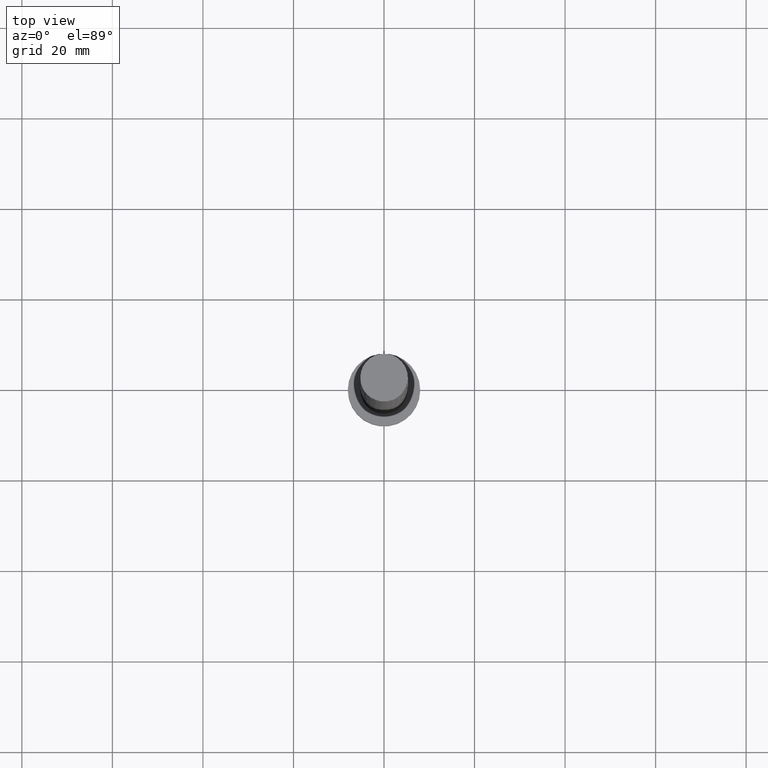
[diagram: clean part render]
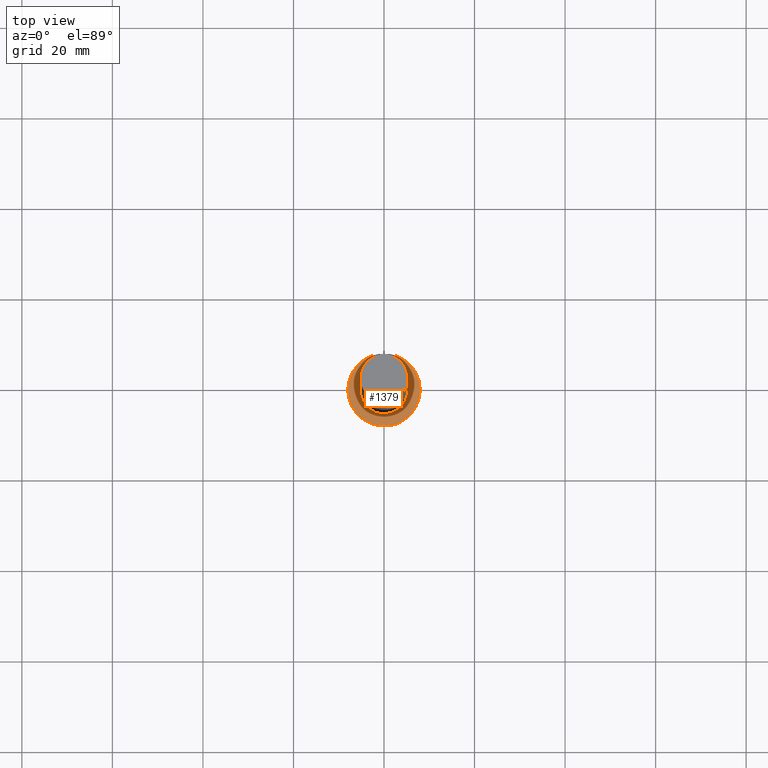
[diagram: same view with one face highlighted and labeled with its STEP entity id]
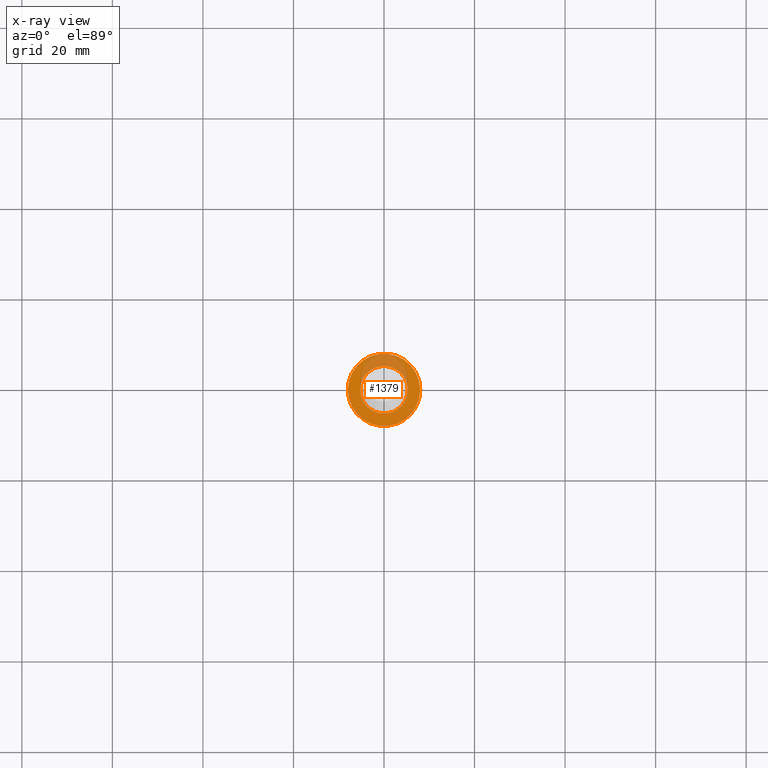
[diagram: x-ray of the same camera — body ghosted, the highlighted face saturated]
A machine part, top view. The second image highlights one B-rep face of the part: STEP entity #1379.
The next image is the same camera in x-ray: the body ghosted, the highlighted face saturated — about 25% of this face is hidden behind the body in this view.
In plain terms, the highlighted planar face has unit normal (0, 0, 1).
Its self-contained STEP definition (entity closure, byte-faithful):
#8 = VERTEX_POINT ( 'NONE', #584 ) ;
#52 = DIRECTION ( 'NONE',  ( 1.000000000000000000, 0.000000000000000000, 0.000000000000000000 ) ) ;
#123 = VERTEX_POINT ( 'NONE', #1104 ) ;
#136 = VERTEX_POINT ( 'NONE', #1111 ) ;
#155 = CIRCLE ( 'NONE', #1088, 5.250000000000000000 ) ;
#156 = EDGE_CURVE ( 'NONE', #123, #1064, #400, .T. ) ;
#179 = FACE_OUTER_BOUND ( 'NONE', #1498, .T. ) ;
#188 = CIRCLE ( 'NONE', #402, 8.000000000000000000 ) ;
#189 = DIRECTION ( 'NONE',  ( 0.000000000000000000, 0.000000000000000000, 1.000000000000000000 ) ) ;
#192 = DIRECTION ( 'NONE',  ( 0.000000000000000000, 0.000000000000000000, 1.000000000000000000 ) ) ;
#264 = ORIENTED_EDGE ( 'NONE', *, *, #1303, .F. ) ;
#267 = AXIS2_PLACEMENT_3D ( 'NONE', #929, #540, #1079 ) ;
#400 = CIRCLE ( 'NONE', #612, 8.000000000000000000 ) ;
#402 = AXIS2_PLACEMENT_3D ( 'NONE', #1452, #1189, #52 ) ;
#405 = FACE_BOUND ( 'NONE', #604, .T. ) ;
#422 = DIRECTION ( 'NONE',  ( 1.000000000000000000, 0.000000000000000000, -0.000000000000000000 ) ) ;
#540 = DIRECTION ( 'NONE',  ( 0.000000000000000000, 0.000000000000000000, 1.000000000000000000 ) ) ;
#584 = CARTESIAN_POINT ( 'NONE',  ( 5.250000000000000000, 6.429395695523604153E-16, 5.000000000000000000 ) ) ;
#604 = EDGE_LOOP ( 'NONE', ( #1625, #264 ) ) ;
#612 = AXIS2_PLACEMENT_3D ( 'NONE', #1323, #192, #1196 ) ;
#618 = DIRECTION ( 'NONE',  ( 0.000000000000000000, 0.000000000000000000, 1.000000000000000000 ) ) ;
#635 = AXIS2_PLACEMENT_3D ( 'NONE', #1039, #189, #422 ) ;
#652 = DIRECTION ( 'NONE',  ( 1.000000000000000000, 0.000000000000000000, 0.000000000000000000 ) ) ;
#888 = EDGE_CURVE ( 'NONE', #136, #8, #1433, .T. ) ;
#918 = EDGE_CURVE ( 'NONE', #1064, #123, #188, .T. ) ;
#929 = CARTESIAN_POINT ( 'NONE',  ( 0.000000000000000000, 0.000000000000000000, 5.000000000000000000 ) ) ;
#946 = PLANE ( 'NONE',  #635 ) ;
#989 = CARTESIAN_POINT ( 'NONE',  ( 8.000000000000000000, 9.797174393178825657E-16, 5.000000000000000000 ) ) ;
#1039 = CARTESIAN_POINT ( 'NONE',  ( 0.000000000000000000, 0.000000000000000000, 5.000000000000000000 ) ) ;
#1064 = VERTEX_POINT ( 'NONE', #989 ) ;
#1079 = DIRECTION ( 'NONE',  ( 1.000000000000000000, 0.000000000000000000, 0.000000000000000000 ) ) ;
#1088 = AXIS2_PLACEMENT_3D ( 'NONE', #1263, #618, #652 ) ;
#1104 = CARTESIAN_POINT ( 'NONE',  ( -8.000000000000000000, 0.000000000000000000, 5.000000000000000000 ) ) ;
#1111 = CARTESIAN_POINT ( 'NONE',  ( -5.250000000000000000, 0.000000000000000000, 5.000000000000000000 ) ) ;
#1189 = DIRECTION ( 'NONE',  ( 0.000000000000000000, 0.000000000000000000, 1.000000000000000000 ) ) ;
#1196 = DIRECTION ( 'NONE',  ( 1.000000000000000000, 0.000000000000000000, 0.000000000000000000 ) ) ;
#1263 = CARTESIAN_POINT ( 'NONE',  ( 0.000000000000000000, 0.000000000000000000, 5.000000000000000000 ) ) ;
#1303 = EDGE_CURVE ( 'NONE', #8, #136, #155, .T. ) ;
#1323 = CARTESIAN_POINT ( 'NONE',  ( 0.000000000000000000, 0.000000000000000000, 5.000000000000000000 ) ) ;
#1339 = ORIENTED_EDGE ( 'NONE', *, *, #156, .T. ) ;
#1379 = ADVANCED_FACE ( 'NONE', ( #405, #179 ), #946, .T. ) ;
#1433 = CIRCLE ( 'NONE', #267, 5.250000000000000000 ) ;
#1452 = CARTESIAN_POINT ( 'NONE',  ( 0.000000000000000000, 0.000000000000000000, 5.000000000000000000 ) ) ;
#1498 = EDGE_LOOP ( 'NONE', ( #1339, #1610 ) ) ;
#1610 = ORIENTED_EDGE ( 'NONE', *, *, #918, .T. ) ;
#1625 = ORIENTED_EDGE ( 'NONE', *, *, #888, .F. ) ;